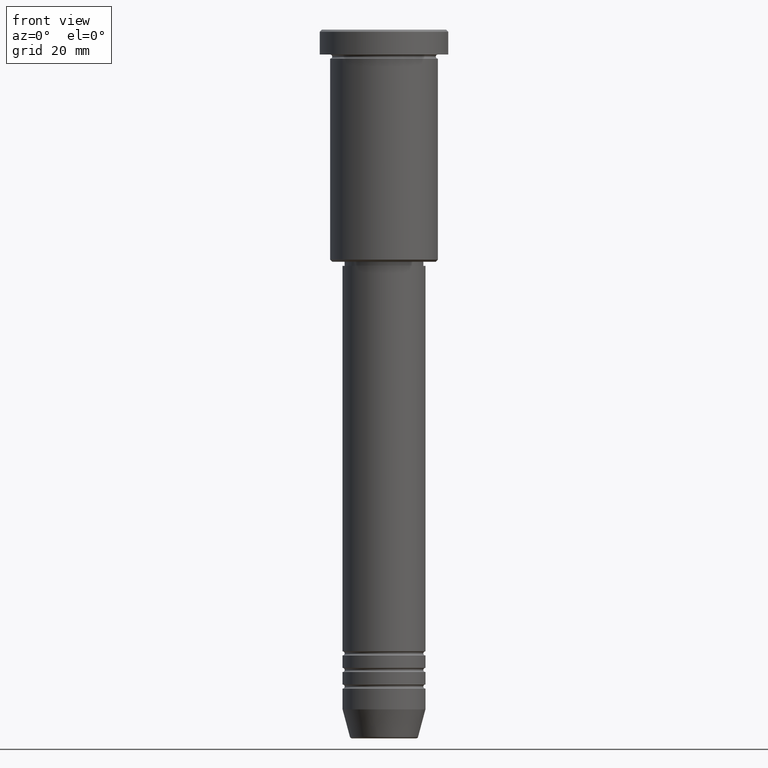
[diagram: clean part render]
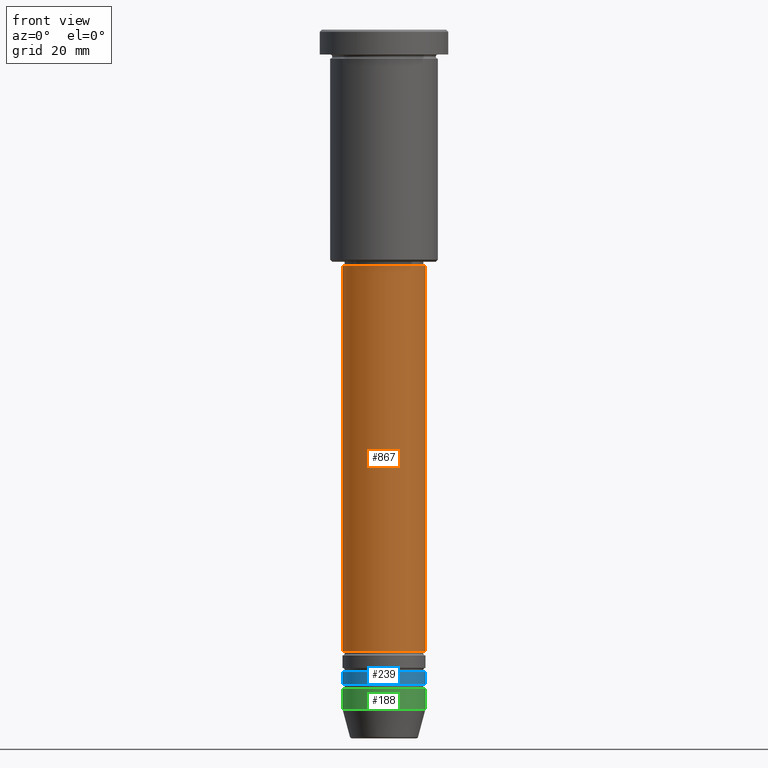
[diagram: same view with three faces highlighted in distinct colors, each labeled with its STEP entity id]
A machine part, front view with three faces highlighted in distinct colors.
Their STEP definitions:

[orange] entity #867 — the highlighted cylindrical surface (partial cylindrical patch) has radius 10 mm, axis along (-0, -0, 1).
#55 = VECTOR ( 'NONE', #1153, 1000.000000000000000 ) ;
#126 = DIRECTION ( 'NONE',  ( 1.000000000000000000, 0.000000000000000000, 0.000000000000000000 ) ) ;
#156 = CARTESIAN_POINT ( 'NONE',  ( -9.999999999999998224, 1.224646799147353256E-15, -56.99999999999998579 ) ) ;
#193 = VERTEX_POINT ( 'NONE', #156 ) ;
#211 = VERTEX_POINT ( 'NONE', #360 ) ;
#217 = FACE_OUTER_BOUND ( 'NONE', #751, .T. ) ;
#228 = CARTESIAN_POINT ( 'NONE',  ( 9.999999999999998224, 0.000000000000000000, -56.99999999999998579 ) ) ;
#289 = DIRECTION ( 'NONE',  ( -0.000000000000000000, -0.000000000000000000, 1.000000000000000000 ) ) ;
#302 = DIRECTION ( 'NONE',  ( -0.000000000000000000, -0.000000000000000000, 1.000000000000000000 ) ) ;
#309 = CARTESIAN_POINT ( 'NONE',  ( 0.000000000000000000, 0.000000000000000000, -56.99999999999998579 ) ) ;
#333 = ORIENTED_EDGE ( 'NONE', *, *, #892, .T. ) ;
#360 = CARTESIAN_POINT ( 'NONE',  ( 10.00000000000000178, 0.000000000000000000, -149.9999999999999147 ) ) ;
#362 = EDGE_CURVE ( 'NONE', #211, #1171, #686, .T. ) ;
#415 = VERTEX_POINT ( 'NONE', #577 ) ;
#528 = CIRCLE ( 'NONE', #1179, 9.999999999999998224 ) ;
#577 = CARTESIAN_POINT ( 'NONE',  ( -10.00000000000000178, 1.224646799147353454E-15, -149.9999999999999147 ) ) ;
#578 = CARTESIAN_POINT ( 'NONE',  ( 0.000000000000000000, 0.000000000000000000, 0.000000000000000000 ) ) ;
#586 = CYLINDRICAL_SURFACE ( 'NONE', #1041, 10.00000000000000000 ) ;
#599 = VECTOR ( 'NONE', #949, 1000.000000000000000 ) ;
#604 = CIRCLE ( 'NONE', #974, 10.00000000000000178 ) ;
#637 = EDGE_CURVE ( 'NONE', #193, #1171, #528, .T. ) ;
#685 = DIRECTION ( 'NONE',  ( 1.000000000000000000, 0.000000000000000000, 0.000000000000000000 ) ) ;
#686 = LINE ( 'NONE', #1049, #599 ) ;
#744 = ORIENTED_EDGE ( 'NONE', *, *, #362, .T. ) ;
#751 = EDGE_LOOP ( 'NONE', ( #1051, #333, #744, #809 ) ) ;
#769 = DIRECTION ( 'NONE',  ( -0.000000000000000000, -0.000000000000000000, 1.000000000000000000 ) ) ;
#788 = LINE ( 'NONE', #991, #55 ) ;
#809 = ORIENTED_EDGE ( 'NONE', *, *, #637, .F. ) ;
#867 = ADVANCED_FACE ( 'NONE', ( #217 ), #586, .T. ) ;
#892 = EDGE_CURVE ( 'NONE', #415, #211, #604, .T. ) ;
#949 = DIRECTION ( 'NONE',  ( -0.000000000000000000, -0.000000000000000000, 1.000000000000000000 ) ) ;
#974 = AXIS2_PLACEMENT_3D ( 'NONE', #1113, #302, #1045 ) ;
#991 = CARTESIAN_POINT ( 'NONE',  ( -10.00000000000000000, 1.224646799147353256E-15, 0.000000000000000000 ) ) ;
#1041 = AXIS2_PLACEMENT_3D ( 'NONE', #578, #289, #126 ) ;
#1045 = DIRECTION ( 'NONE',  ( 1.000000000000000000, 0.000000000000000000, 0.000000000000000000 ) ) ;
#1049 = CARTESIAN_POINT ( 'NONE',  ( 10.00000000000000000, 0.000000000000000000, 0.000000000000000000 ) ) ;
#1051 = ORIENTED_EDGE ( 'NONE', *, *, #1133, .F. ) ;
#1113 = CARTESIAN_POINT ( 'NONE',  ( 0.000000000000000000, 0.000000000000000000, -149.9999999999999147 ) ) ;
#1133 = EDGE_CURVE ( 'NONE', #415, #193, #788, .T. ) ;
#1153 = DIRECTION ( 'NONE',  ( -0.000000000000000000, -0.000000000000000000, 1.000000000000000000 ) ) ;
#1171 = VERTEX_POINT ( 'NONE', #228 ) ;
#1179 = AXIS2_PLACEMENT_3D ( 'NONE', #309, #769, #685 ) ;

[blue] entity #239 — the highlighted cylindrical surface (partial cylindrical patch) has radius 10 mm, axis along (-0, -0, 1).
#44 = DIRECTION ( 'NONE',  ( 1.000000000000000000, 0.000000000000000000, 0.000000000000000000 ) ) ;
#54 = DIRECTION ( 'NONE',  ( -0.000000000000000000, -0.000000000000000000, 1.000000000000000000 ) ) ;
#127 = VECTOR ( 'NONE', #444, 1000.000000000000000 ) ;
#220 = CIRCLE ( 'NONE', #817, 10.00000000000000178 ) ;
#239 = ADVANCED_FACE ( 'NONE', ( #806 ), #1012, .T. ) ;
#347 = EDGE_CURVE ( 'NONE', #464, #1168, #220, .T. ) ;
#399 = CARTESIAN_POINT ( 'NONE',  ( 0.000000000000000000, 0.000000000000000000, -154.9999999999999147 ) ) ;
#407 = AXIS2_PLACEMENT_3D ( 'NONE', #448, #752, #747 ) ;
#410 = VECTOR ( 'NONE', #762, 1000.000000000000000 ) ;
#414 = EDGE_CURVE ( 'NONE', #1168, #749, #481, .T. ) ;
#424 = ORIENTED_EDGE ( 'NONE', *, *, #512, .F. ) ;
#429 = AXIS2_PLACEMENT_3D ( 'NONE', #399, #1035, #668 ) ;
#444 = DIRECTION ( 'NONE',  ( -0.000000000000000000, -0.000000000000000000, 1.000000000000000000 ) ) ;
#448 = CARTESIAN_POINT ( 'NONE',  ( 0.000000000000000000, 0.000000000000000000, 0.000000000000000000 ) ) ;
#464 = VERTEX_POINT ( 'NONE', #1099 ) ;
#481 = LINE ( 'NONE', #873, #410 ) ;
#512 = EDGE_CURVE ( 'NONE', #464, #723, #1023, .T. ) ;
#566 = CARTESIAN_POINT ( 'NONE',  ( 10.00000000000000000, 0.000000000000000000, -154.9999999999999147 ) ) ;
#668 = DIRECTION ( 'NONE',  ( 1.000000000000000000, 0.000000000000000000, 0.000000000000000000 ) ) ;
#693 = CARTESIAN_POINT ( 'NONE',  ( 0.000000000000000000, 0.000000000000000000, -157.9999999999999147 ) ) ;
#723 = VERTEX_POINT ( 'NONE', #929 ) ;
#747 = DIRECTION ( 'NONE',  ( 1.000000000000000000, 0.000000000000000000, 0.000000000000000000 ) ) ;
#749 = VERTEX_POINT ( 'NONE', #566 ) ;
#752 = DIRECTION ( 'NONE',  ( -0.000000000000000000, -0.000000000000000000, 1.000000000000000000 ) ) ;
#762 = DIRECTION ( 'NONE',  ( -0.000000000000000000, -0.000000000000000000, 1.000000000000000000 ) ) ;
#806 = FACE_OUTER_BOUND ( 'NONE', #999, .T. ) ;
#817 = AXIS2_PLACEMENT_3D ( 'NONE', #693, #54, #44 ) ;
#818 = CIRCLE ( 'NONE', #429, 10.00000000000000000 ) ;
#873 = CARTESIAN_POINT ( 'NONE',  ( 10.00000000000000178, 0.000000000000000000, 0.000000000000000000 ) ) ;
#883 = EDGE_CURVE ( 'NONE', #723, #749, #818, .T. ) ;
#929 = CARTESIAN_POINT ( 'NONE',  ( -10.00000000000000000, 1.224646799147353256E-15, -154.9999999999999147 ) ) ;
#984 = ORIENTED_EDGE ( 'NONE', *, *, #883, .F. ) ;
#999 = EDGE_LOOP ( 'NONE', ( #424, #1161, #1011, #984 ) ) ;
#1011 = ORIENTED_EDGE ( 'NONE', *, *, #414, .T. ) ;
#1012 = CYLINDRICAL_SURFACE ( 'NONE', #407, 10.00000000000000178 ) ;
#1023 = LINE ( 'NONE', #1122, #127 ) ;
#1035 = DIRECTION ( 'NONE',  ( -0.000000000000000000, -0.000000000000000000, 1.000000000000000000 ) ) ;
#1099 = CARTESIAN_POINT ( 'NONE',  ( -10.00000000000000178, 1.224646799147353454E-15, -157.9999999999999147 ) ) ;
#1122 = CARTESIAN_POINT ( 'NONE',  ( -10.00000000000000178, 1.224646799147353454E-15, 0.000000000000000000 ) ) ;
#1143 = CARTESIAN_POINT ( 'NONE',  ( 10.00000000000000178, 0.000000000000000000, -157.9999999999999147 ) ) ;
#1161 = ORIENTED_EDGE ( 'NONE', *, *, #347, .T. ) ;
#1168 = VERTEX_POINT ( 'NONE', #1143 ) ;

[green] entity #188 — the highlighted cylindrical surface (partial cylindrical patch) has radius 10 mm, axis along (-0, -0, 1).
#22 = LINE ( 'NONE', #753, #584 ) ;
#46 = CARTESIAN_POINT ( 'NONE',  ( -10.00000000000000000, 1.224646799147353256E-15, 0.000000000000000000 ) ) ;
#50 = VERTEX_POINT ( 'NONE', #225 ) ;
#56 = DIRECTION ( 'NONE',  ( -0.000000000000000000, -0.000000000000000000, 1.000000000000000000 ) ) ;
#63 = DIRECTION ( 'NONE',  ( -0.000000000000000000, -0.000000000000000000, 1.000000000000000000 ) ) ;
#163 = DIRECTION ( 'NONE',  ( -0.000000000000000000, -0.000000000000000000, 1.000000000000000000 ) ) ;
#177 = EDGE_CURVE ( 'NONE', #191, #50, #1105, .T. ) ;
#188 = ADVANCED_FACE ( 'NONE', ( #426 ), #1162, .T. ) ;
#191 = VERTEX_POINT ( 'NONE', #533 ) ;
#215 = CARTESIAN_POINT ( 'NONE',  ( 10.00000000000000000, 0.000000000000000000, -164.0000000000000000 ) ) ;
#224 = EDGE_CURVE ( 'NONE', #343, #50, #22, .T. ) ;
#225 = CARTESIAN_POINT ( 'NONE',  ( 10.00000000000000000, 0.000000000000000000, -159.0000000000000000 ) ) ;
#326 = AXIS2_PLACEMENT_3D ( 'NONE', #442, #1095, #814 ) ;
#331 = DIRECTION ( 'NONE',  ( 1.000000000000000000, 0.000000000000000000, 0.000000000000000000 ) ) ;
#339 = EDGE_LOOP ( 'NONE', ( #853, #1001, #380, #926 ) ) ;
#343 = VERTEX_POINT ( 'NONE', #215 ) ;
#351 = CARTESIAN_POINT ( 'NONE',  ( 0.000000000000000000, 0.000000000000000000, 0.000000000000000000 ) ) ;
#380 = ORIENTED_EDGE ( 'NONE', *, *, #224, .T. ) ;
#426 = FACE_OUTER_BOUND ( 'NONE', #339, .T. ) ;
#442 = CARTESIAN_POINT ( 'NONE',  ( 0.000000000000000000, 0.000000000000000000, -159.0000000000000000 ) ) ;
#447 = CIRCLE ( 'NONE', #646, 10.00000000000000000 ) ;
#487 = CARTESIAN_POINT ( 'NONE',  ( -10.00000000000000000, 1.224646799147353256E-15, -164.0000000000000000 ) ) ;
#533 = CARTESIAN_POINT ( 'NONE',  ( -10.00000000000000000, 1.224646799147353256E-15, -159.0000000000000000 ) ) ;
#571 = VECTOR ( 'NONE', #56, 1000.000000000000000 ) ;
#584 = VECTOR ( 'NONE', #1119, 1000.000000000000000 ) ;
#615 = DIRECTION ( 'NONE',  ( 1.000000000000000000, 0.000000000000000000, 0.000000000000000000 ) ) ;
#627 = CARTESIAN_POINT ( 'NONE',  ( 0.000000000000000000, 0.000000000000000000, -164.0000000000000000 ) ) ;
#646 = AXIS2_PLACEMENT_3D ( 'NONE', #627, #63, #331 ) ;
#753 = CARTESIAN_POINT ( 'NONE',  ( 10.00000000000000000, 0.000000000000000000, 0.000000000000000000 ) ) ;
#805 = EDGE_CURVE ( 'NONE', #870, #343, #447, .T. ) ;
#814 = DIRECTION ( 'NONE',  ( 1.000000000000000000, 0.000000000000000000, 0.000000000000000000 ) ) ;
#853 = ORIENTED_EDGE ( 'NONE', *, *, #979, .F. ) ;
#870 = VERTEX_POINT ( 'NONE', #487 ) ;
#874 = AXIS2_PLACEMENT_3D ( 'NONE', #351, #163, #615 ) ;
#926 = ORIENTED_EDGE ( 'NONE', *, *, #177, .F. ) ;
#979 = EDGE_CURVE ( 'NONE', #870, #191, #989, .T. ) ;
#989 = LINE ( 'NONE', #46, #571 ) ;
#1001 = ORIENTED_EDGE ( 'NONE', *, *, #805, .T. ) ;
#1095 = DIRECTION ( 'NONE',  ( -0.000000000000000000, -0.000000000000000000, 1.000000000000000000 ) ) ;
#1105 = CIRCLE ( 'NONE', #326, 10.00000000000000000 ) ;
#1119 = DIRECTION ( 'NONE',  ( -0.000000000000000000, -0.000000000000000000, 1.000000000000000000 ) ) ;
#1162 = CYLINDRICAL_SURFACE ( 'NONE', #874, 10.00000000000000000 ) ;